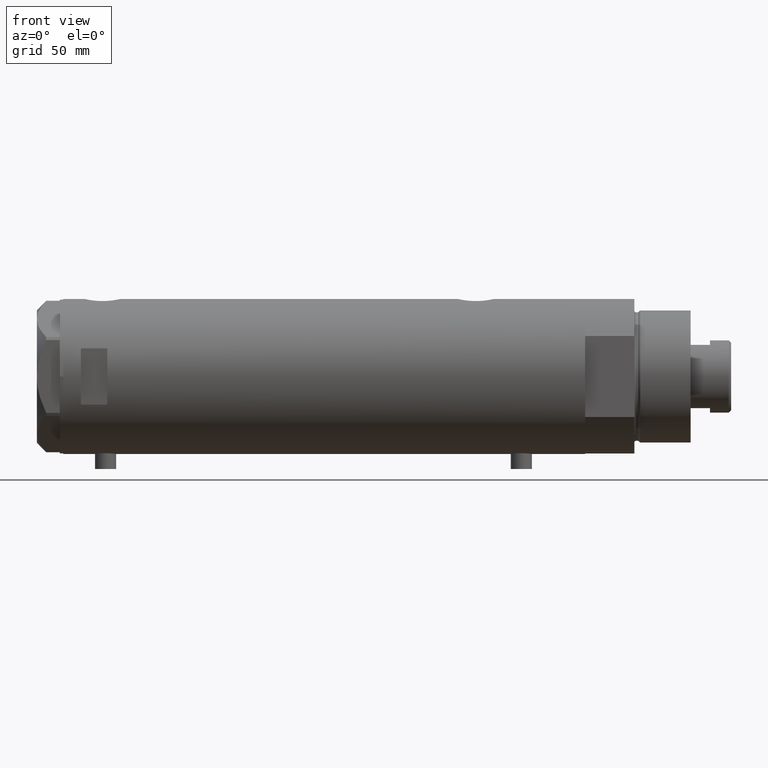
[diagram: clean part render]
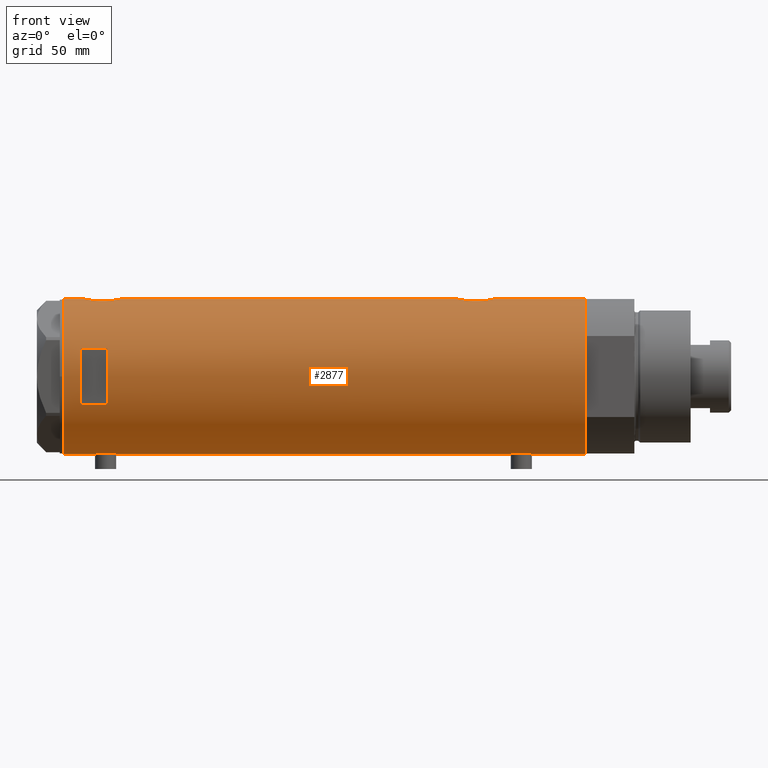
[diagram: same view with one face highlighted and labeled with its STEP entity id]
A machine part, front view. The second image highlights one B-rep face of the part: STEP entity #2877.
In plain terms, the highlighted cylindrical surface (partial cylindrical patch) has radius 44 mm, axis along (-1, -0, 0).
Its self-contained STEP definition (entity closure, byte-faithful):
#7 = CARTESIAN_POINT ( 'NONE',  ( 43.35257225115238811, -7.523216248090025537, -92.69605303592345535 ) ) ;
#8 = CARTESIAN_POINT ( 'NONE',  ( 44.00000000000000000, -1.726036355082439716E-15, 115.9000000000000199 ) ) ;
#32 = CARTESIAN_POINT ( 'NONE',  ( 43.27861175590267351, -7.937636171351966752, -92.19102867990994810 ) ) ;
#33 = CARTESIAN_POINT ( 'NONE',  ( -43.58358352828439308, -6.039443007521657414, -113.5216309838574347 ) ) ;
#45 = CARTESIAN_POINT ( 'NONE',  ( -44.00000000000000000, 5.388445916248353619E-15, -148.1999999999999886 ) ) ;
#92 = CIRCLE ( 'NONE', #2880, 44.00000000000000000 ) ;
#119 = CARTESIAN_POINT ( 'NONE',  ( 43.92776409818819872, -2.602555515054473467, 135.5780334928707589 ) ) ;
#135 = CARTESIAN_POINT ( 'NONE',  ( -43.64064219598290606, -5.614224114468902904, 121.4231451038052683 ) ) ;
#162 = CARTESIAN_POINT ( 'NONE',  ( 43.77763691689009562, -4.427538730370028652, 134.8724271220806656 ) ) ;
#173 = ORIENTED_EDGE ( 'NONE', *, *, #1326, .F. ) ;
#176 = VERTEX_POINT ( 'NONE', #1098 ) ;
#224 = CARTESIAN_POINT ( 'NONE',  ( 42.92612181419237771, -9.662173761604313071, 128.4979978960971323 ) ) ;
#226 = CARTESIAN_POINT ( 'NONE',  ( 42.86369059155249772, -9.935849517229277339, -87.40637410018203468 ) ) ;
#228 = CARTESIAN_POINT ( 'NONE',  ( -43.91347832647110039, -2.763895659397271665, -117.5093864937758497 ) ) ;
#242 = CARTESIAN_POINT ( 'NONE',  ( -43.57664920749031978, -6.089110472216502146, 122.7763691313058985 ) ) ;
#270 = CARTESIAN_POINT ( 'NONE',  ( 43.39001814939470592, -7.304817421876465211, -92.93703460671677874 ) ) ;
#279 = VERTEX_POINT ( 'NONE', #2876 ) ;
#290 = CARTESIAN_POINT ( 'NONE',  ( -43.80623767923740530, -4.134861581628529237, 128.9043636726069337 ) ) ;
#294 = CARTESIAN_POINT ( 'NONE',  ( -43.97059312650996787, -1.620278982928820888, -117.9397869138586827 ) ) ;
#297 = ORIENTED_EDGE ( 'NONE', *, *, #3134, .T. ) ;
#311 = CARTESIAN_POINT ( 'NONE',  ( -43.55388615229802696, -6.249720082677238331, 123.7826748588801564 ) ) ;
#440 = EDGE_CURVE ( 'NONE', #3120, #279, #92, .T. ) ;
#447 = DIRECTION ( 'NONE',  ( 1.000000000000000000, 0.000000000000000000, 0.000000000000000000 ) ) ;
#452 = B_SPLINE_CURVE_WITH_KNOTS ( 'NONE', 3,
 ( #2943, #1145, #1632, #4274, #2500, #3291, #2355, #4469, #3703, #1572, #1966, #1223, #2648, #4043, #2628, #1589, #3000, #874, #4097, #2275, #3728, #572, #3677, #524, #3744, #226, #1925, #3335, #3025, #589, #1669, #32, #7, #270, #4139, #639, #4512, #986, #1378, #2428, #2032, #2783, #4191, #2444, #3830, #1032, #3446 ),
 .UNSPECIFIED., .F., .F.,
 ( 4, 2, 2, 2, 2, 2, 2, 2, 2, 2, 1, 2, 2, 2, 2, 2, 2, 2, 2, 2, 2, 2, 2, 4 ),
 ( 0.03136730421198213881, 0.03332724096696802751, 0.03528717772195391622, 0.03626714609944684670, 0.03724711447693978411, 0.03920705123192565894, 0.04018701960941859636, 0.04116698798691152683, 0.04312692474189736697, 0.04410689311939030438, 0.04508686149688324180, 0.04606682987437617921, 0.04704679825186912356, 0.04900673500685504003, 0.05096667176184094955, 0.05292660851682686601, 0.05390657689431983812, 0.05488654527181281717, 0.05586651364930578928, 0.05684648202679876139, 0.05880641878178470561, 0.05978638715927767078, 0.06076635553677063595, 0.06272629229175656629 ),
 .UNSPECIFIED. ) ;
#455 = LINE ( 'NONE', #2908, #3638 ) ;
#473 = ORIENTED_EDGE ( 'NONE', *, *, #1225, .F. ) ;
#478 = CARTESIAN_POINT ( 'NONE',  ( 43.35323102813806173, -7.519449998269469582, 132.5004228928426642 ) ) ;
#521 = ORIENTED_EDGE ( 'NONE', *, *, #1843, .F. ) ;
#524 = CARTESIAN_POINT ( 'NONE',  ( 42.84860178791321772, -9.999866241079296003, -85.76603617305838156 ) ) ;
#547 = CARTESIAN_POINT ( 'NONE',  ( 42.86761451923556621, -9.918101748202657220, 127.2186752354962636 ) ) ;
#572 = CARTESIAN_POINT ( 'NONE',  ( 42.86761451923556621, -9.918101748202653667, -84.78132476450375066 ) ) ;
#573 = CARTESIAN_POINT ( 'NONE',  ( -43.99432382855034973, -0.8140126287075730716, -118.1104216681691526 ) ) ;
#586 = CARTESIAN_POINT ( 'NONE',  ( 43.77905627191559290, -4.445085099228545111, 116.9185916568396806 ) ) ;
#589 = CARTESIAN_POINT ( 'NONE',  ( 43.13689707656756411, -8.680169016269173810, -91.10836902111202562 ) ) ;
#590 = CARTESIAN_POINT ( 'NONE',  ( -44.00000000000001421, -0.4080709675389184166, -118.1500000000000341 ) ) ;
#610 = CARTESIAN_POINT ( 'NONE',  ( 43.61181667275830875, -5.838254419127776096, 117.7745589058250744 ) ) ;
#614 = CARTESIAN_POINT ( 'NONE',  ( -43.66469451360047316, -5.426465874727615990, 127.3277459186421225 ) ) ;
#637 = CARTESIAN_POINT ( 'NONE',  ( 43.24192112218942441, -8.134529092006102857, 120.0744777013589299 ) ) ;
#638 = VERTEX_POINT ( 'NONE', #3179 ) ;
#639 = CARTESIAN_POINT ( 'NONE',  ( 43.50208939911752992, -6.605519787823897815, -93.61487246254432648 ) ) ;
#644 = ORIENTED_EDGE ( 'NONE', *, *, #656, .F. ) ;
#656 = EDGE_CURVE ( 'NONE', #3465, #3511, #4279, .T. ) ;
#663 = CARTESIAN_POINT ( 'NONE',  ( -43.60904414879379942, -5.852991024272610865, 126.4015631665290300 ) ) ;
#665 = CARTESIAN_POINT ( 'NONE',  ( -43.66524845950890210, -5.422010366683132965, -115.0353804335297809 ) ) ;
#712 = CARTESIAN_POINT ( 'NONE',  ( -43.88932649443422918, -3.137583818903199262, -106.4790096194045788 ) ) ;
#718 = ORIENTED_EDGE ( 'NONE', *, *, #4406, .F. ) ;
#720 = CARTESIAN_POINT ( 'NONE',  ( 44.00000000000000000, 0.000000000000000000, -148.1999999999999886 ) ) ;
#734 = CARTESIAN_POINT ( 'NONE',  ( -43.97729452866927602, -1.427712738744854715, -105.8117709255657815 ) ) ;
#759 = CARTESIAN_POINT ( 'NONE',  ( -43.59959777593760322, -5.922725608094071781, -109.8935068878258079 ) ) ;
#821 = CARTESIAN_POINT ( 'NONE',  ( 43.50370990764397305, -6.606474645717115735, 133.4352093528489149 ) ) ;
#835 = CIRCLE ( 'NONE', #3549, 44.00000000000000000 ) ;
#843 = CARTESIAN_POINT ( 'NONE',  ( -15.96871942267132027, -40.99999999999999289, -148.1999999999999886 ) ) ;
#848 = AXIS2_PLACEMENT_3D ( 'NONE', #2423, #2712, #2006 ) ;
#849 = CARTESIAN_POINT ( 'NONE',  ( 44.00000000000000000, 0.000000000000000000, -148.1999999999999886 ) ) ;
#851 = CARTESIAN_POINT ( 'NONE',  ( 0.000000000000000000, 0.000000000000000000, -148.1999999999999886 ) ) ;
#874 = CARTESIAN_POINT ( 'NONE',  ( 42.99316244204495518, -9.359736474891656499, -82.56396979967827576 ) ) ;
#939 = CARTESIAN_POINT ( 'NONE',  ( 43.07447880731469780, -8.980869115410031966, 130.3470997020410209 ) ) ;
#946 = EDGE_CURVE ( 'NONE', #1254, #2663, #3023, .T. ) ;
#956 = CARTESIAN_POINT ( 'NONE',  ( 42.84850870634925002, -10.00026508230968325, 125.2441608487825988 ) ) ;
#985 = CARTESIAN_POINT ( 'NONE',  ( -43.95404166778755695, -2.020054257598456360, 130.1180894548565448 ) ) ;
#986 = CARTESIAN_POINT ( 'NONE',  ( 43.61181667275830165, -5.838254419127787642, -94.22544109417493985 ) ) ;
#1020 = CARTESIAN_POINT ( 'NONE',  ( 44.00000000000000000, 0.000000000000000000, -148.1999999999999886 ) ) ;
#1032 = CARTESIAN_POINT ( 'NONE',  ( 43.99999999999999289, -0.6628808997490059918, -96.10000000000000853 ) ) ;
#1035 = CARTESIAN_POINT ( 'NONE',  ( -43.55981666146650610, -6.208773019004409477, -112.7243799919361606 ) ) ;
#1055 = CARTESIAN_POINT ( 'NONE',  ( -43.88932649443425049, -3.137583818903188160, 129.6209903805954866 ) ) ;
#1057 = CARTESIAN_POINT ( 'NONE',  ( -44.00000000000001421, -0.4080709675389180835, 117.9500000000000171 ) ) ;
#1059 = CARTESIAN_POINT ( 'NONE',  ( -43.74813644611199948, -4.709999724143497879, -107.7715595605677095 ) ) ;
#1080 = CARTESIAN_POINT ( 'NONE',  ( -44.00000000000000000, 5.388445781982983516E-15, 117.9500000000000028 ) ) ;
#1085 = CARTESIAN_POINT ( 'NONE',  ( -43.59994860325051036, -5.920144153815573240, -113.9140635756975968 ) ) ;
#1098 = CARTESIAN_POINT ( 'NONE',  ( -44.00000000000000000, 3.205170455528113082E-15, 130.4500000000000171 ) ) ;
#1114 = CARTESIAN_POINT ( 'NONE',  ( 44.00000000000000000, -3.917104602093038540E-21, -76.10000000000000853 ) ) ;
#1125 = AXIS2_PLACEMENT_3D ( 'NONE', #2341, #4103, #1330 ) ;
#1126 = CARTESIAN_POINT ( 'NONE',  ( -44.00000000000000000, 4.742435893011557518E-16, -105.6499999999999915 ) ) ;
#1145 = CARTESIAN_POINT ( 'NONE',  ( 44.00000000000000000, -0.6537011444665536963, -76.10000000000002274 ) ) ;
#1154 = CARTESIAN_POINT ( 'NONE',  ( -43.97059312650997498, -1.620278982928819778, 118.1602130861413116 ) ) ;
#1193 = CARTESIAN_POINT ( 'NONE',  ( 43.13833976206232990, -8.672905216733560962, 130.9203292102081377 ) ) ;
#1223 = CARTESIAN_POINT ( 'NONE',  ( 43.39114022679083860, -7.298186114522535739, -79.25582720507938461 ) ) ;
#1225 = EDGE_CURVE ( 'NONE', #1658, #1254, #3001, .T. ) ;
#1228 = DIRECTION ( 'NONE',  ( 0.000000000000000000, 0.000000000000000000, 1.000000000000000000 ) ) ;
#1250 = CARTESIAN_POINT ( 'NONE',  ( -44.00000000000000000, 5.388445916248353619E-15, 148.1999999999999886 ) ) ;
#1254 = VERTEX_POINT ( 'NONE', #1262 ) ;
#1258 = CARTESIAN_POINT ( 'NONE',  ( 42.96573602780769363, -9.487415353952519226, 122.6726545541638274 ) ) ;
#1262 = CARTESIAN_POINT ( 'NONE',  ( 15.96871942267132027, -40.99999999999999289, 138.1999999999999886 ) ) ;
#1279 = AXIS2_PLACEMENT_3D ( 'NONE', #851, #1486, #1512 ) ;
#1285 = CIRCLE ( 'NONE', #848, 44.00000000000000000 ) ;
#1304 = CARTESIAN_POINT ( 'NONE',  ( 43.35257225115238100, -7.523216248090027314, 119.3039469640765731 ) ) ;
#1321 = CARTESIAN_POINT ( 'NONE',  ( -43.58327167020067350, -6.041691433183231652, 125.8132755078336658 ) ) ;
#1326 = EDGE_CURVE ( 'NONE', #1569, #3465, #2249, .T. ) ;
#1330 = DIRECTION ( 'NONE',  ( 1.000000000000000000, 0.000000000000000000, 0.000000000000000000 ) ) ;
#1341 = VECTOR ( 'NONE', #2217, 1000.000000000000000 ) ;
#1343 = CARTESIAN_POINT ( 'NONE',  ( 43.57553740812844723, -6.102230194686611320, 117.9710034401132788 ) ) ;
#1348 = CARTESIAN_POINT ( 'NONE',  ( -43.99999999999999289, -0.4134142287044815789, 130.4500000000000455 ) ) ;
#1352 = CARTESIAN_POINT ( 'NONE',  ( -43.71916086763248899, -4.968610719017467758, -115.7133599885462871 ) ) ;
#1377 = CARTESIAN_POINT ( 'NONE',  ( -43.55964145621772587, -6.209995197331128480, 125.0152361338357565 ) ) ;
#1378 = CARTESIAN_POINT ( 'NONE',  ( 43.71626298452615345, -5.019105827807321951, -94.77413437979603827 ) ) ;
#1382 = VERTEX_POINT ( 'NONE', #8 ) ;
#1390 = CARTESIAN_POINT ( 'NONE',  ( 0.000000000000000000, 0.000000000000000000, 148.1999999999999886 ) ) ;
#1419 = CARTESIAN_POINT ( 'NONE',  ( -43.71863308610073773, -4.973248429199020215, -108.0926220987882687 ) ) ;
#1441 = CARTESIAN_POINT ( 'NONE',  ( -43.59994860325049615, -5.920144153815568799, 122.1859364243023549 ) ) ;
#1462 = CARTESIAN_POINT ( 'NONE',  ( -43.95404166778755695, -2.020054257598466574, -105.9819105451434638 ) ) ;
#1463 = VERTEX_POINT ( 'NONE', #849 ) ;
#1486 = DIRECTION ( 'NONE',  ( 0.000000000000000000, 0.000000000000000000, 1.000000000000000000 ) ) ;
#1488 = LINE ( 'NONE', #2649, #2162 ) ;
#1509 = CARTESIAN_POINT ( 'NONE',  ( -43.80686114384899810, -4.128296917151109469, 119.4898414487168878 ) ) ;
#1510 = CARTESIAN_POINT ( 'NONE',  ( 43.88549648731375896, -3.229309612650777872, 135.3866430248638437 ) ) ;
#1512 = DIRECTION ( 'NONE',  ( 1.000000000000000000, 0.000000000000000000, 0.000000000000000000 ) ) ;
#1569 = VERTEX_POINT ( 'NONE', #4374 ) ;
#1572 = CARTESIAN_POINT ( 'NONE',  ( 43.57790701154753066, -6.104591320335878812, -78.15258699105068274 ) ) ;
#1576 = EDGE_CURVE ( 'NONE', #638, #1382, #1859, .T. ) ;
#1587 = CARTESIAN_POINT ( 'NONE',  ( -43.58358352828439308, -6.039443007521653861, 122.5783690161426023 ) ) ;
#1589 = CARTESIAN_POINT ( 'NONE',  ( 43.13833976206232990, -8.672905216733550304, -81.07967078979186226 ) ) ;
#1632 = CARTESIAN_POINT ( 'NONE',  ( 43.98543813568861083, -1.304985013906736491, -76.16346933726120483 ) ) ;
#1645 = CARTESIAN_POINT ( 'NONE',  ( -43.94477385411916259, -2.211843467998029222, 130.0490722992286408 ) ) ;
#1658 = VERTEX_POINT ( 'NONE', #4208 ) ;
#1669 = CARTESIAN_POINT ( 'NONE',  ( 43.24192112218942441, -8.134529092006102857, -91.92552229864112689 ) ) ;
#1673 = LINE ( 'NONE', #3407, #4520 ) ;
#1676 = CARTESIAN_POINT ( 'NONE',  ( 44.00000000000000000, -2.552687571866728611E-15, -96.10000000000000853 ) ) ;
#1688 = CARTESIAN_POINT ( 'NONE',  ( 43.39001814939471302, -7.304817421876452777, 119.0629653932832497 ) ) ;
#1694 = CARTESIAN_POINT ( 'NONE',  ( -43.97029046111976669, -1.628482392291942471, 130.2375861979205354 ) ) ;
#1697 = CARTESIAN_POINT ( 'NONE',  ( -43.87623998657198143, -3.302247739865014964, -117.2103434351974443 ) ) ;
#1720 = CARTESIAN_POINT ( 'NONE',  ( -43.91398925748692506, -2.775454910411446541, 129.8147077568106624 ) ) ;
#1747 = CARTESIAN_POINT ( 'NONE',  ( -43.91398925748691084, -2.775454910411443876, -106.2852922431893319 ) ) ;
#1775 = LINE ( 'NONE', #720, #2388 ) ;
#1797 = CARTESIAN_POINT ( 'NONE',  ( -43.83572624786196315, -3.813948911733267888, 119.2316356977933651 ) ) ;
#1805 = VECTOR ( 'NONE', #3820, 1000.000000000000000 ) ;
#1843 = EDGE_CURVE ( 'NONE', #2663, #3576, #3986, .T. ) ;
#1859 = B_SPLINE_CURVE_WITH_KNOTS ( 'NONE', 3,
 ( #3329, #3597, #2909, #119, #1510, #3310, #162, #2978, #2582, #3972, #821, #3622, #478, #2929, #4353, #1193, #939, #2299, #2395, #224, #3442, #547, #3785, #3763, #956, #3699, #4419, #1258, #4467, #2330, #637, #2672, #1304, #1688, #4134, #2697, #1343, #610, #3086, #586, #2029, #4169, #4505, #3049, #1981, #2349, #2996 ),
 .UNSPECIFIED., .F., .F.,
 ( 4, 2, 2, 2, 2, 2, 2, 2, 2, 2, 1, 2, 2, 2, 2, 2, 2, 2, 2, 2, 2, 2, 2, 4 ),
 ( 0.03136730421198213187, 0.03332724096696802751, 0.03528717772195392316, 0.03626714609944686751, 0.03724711447693981187, 0.03920705123192570751, 0.04018701960941865881, 0.04116698798691159622, 0.04312692474189755432, 0.04410689311939049867, 0.04508686149688344302, 0.04606682987437638044, 0.04704679825186932479, 0.04900673500685520656, 0.05096667176184109527, 0.05292660851682697010, 0.05390657689431993527, 0.05488654527181288656, 0.05586651364930585173, 0.05684648202679880302, 0.05880641878178471949, 0.05978638715927768466, 0.06076635553677064983, 0.06272629229175658017 ),
 .UNSPECIFIED. ) ;
#1881 = FACE_OUTER_BOUND ( 'NONE', #3366, .T. ) ;
#1918 = EDGE_CURVE ( 'NONE', #3226, #1463, #835, .T. ) ;
#1921 = VECTOR ( 'NONE', #2147, 1000.000000000000000 ) ;
#1925 = CARTESIAN_POINT ( 'NONE',  ( 42.92195198079053142, -9.681069926205539744, -88.68932500906515770 ) ) ;
#1966 = CARTESIAN_POINT ( 'NONE',  ( 43.50370990764398016, -6.606474645717129057, -78.56479064715114191 ) ) ;
#1981 = CARTESIAN_POINT ( 'NONE',  ( 43.98503203903423753, -1.316644100880400625, 115.9652704470436788 ) ) ;
#1986 = CARTESIAN_POINT ( 'NONE',  ( -43.95442538259509746, -2.011679190499023662, -117.8209354650977616 ) ) ;
#2006 = DIRECTION ( 'NONE',  ( -1.000000000000000000, 0.000000000000000000, 0.000000000000000000 ) ) ;
#2027 = EDGE_LOOP ( 'NONE', ( #4359, #521, #2654, #473 ) ) ;
#2029 = CARTESIAN_POINT ( 'NONE',  ( 43.85817087158036287, -3.542878095418166229, 116.5429633888447682 ) ) ;
#2032 = CARTESIAN_POINT ( 'NONE',  ( 43.85817087158034866, -3.542878095418174667, -95.45703661115521754 ) ) ;
#2078 = CARTESIAN_POINT ( 'NONE',  ( -43.57636709704393496, -6.091127289750671636, 125.6149932566098215 ) ) ;
#2108 = CARTESIAN_POINT ( 'NONE',  ( -43.99417593155912698, -0.8219945290704717689, -105.6906189758703931 ) ) ;
#2117 = DIRECTION ( 'NONE',  ( 0.000000000000000000, 0.000000000000000000, 1.000000000000000000 ) ) ;
#2147 = DIRECTION ( 'NONE',  ( 0.000000000000000000, 0.000000000000000000, 1.000000000000000000 ) ) ;
#2161 = CARTESIAN_POINT ( 'NONE',  ( -43.83513771791772484, -3.820747781112549202, -106.9367898170362565 ) ) ;
#2162 = VECTOR ( 'NONE', #3312, 1000.000000000000000 ) ;
#2169 = DIRECTION ( 'NONE',  ( 0.000000000000000000, 0.000000000000000000, 1.000000000000000000 ) ) ;
#2182 = ORIENTED_EDGE ( 'NONE', *, *, #1576, .F. ) ;
#2217 = DIRECTION ( 'NONE',  ( -0.000000000000000000, -0.000000000000000000, -1.000000000000000000 ) ) ;
#2249 = B_SPLINE_CURVE_WITH_KNOTS ( 'NONE', 3,
 ( #2405, #590, #573, #3791, #294, #1986, #2376, #228, #2718, #1697, #4515, #3403, #4444, #1352, #665, #3027, #2700, #1085, #33, #3518, #1035, #2494, #2473, #3905, #3883, #3118, #759, #4214, #3861, #2515, #1419, #1059, #3832, #2161, #712, #1747, #2447, #1462, #2831, #734, #2108, #2806, #1126 ),
 .UNSPECIFIED., .F., .F.,
 ( 4, 2, 2, 1, 2, 2, 2, 2, 2, 2, 2, 2, 2, 2, 2, 2, 2, 2, 2, 2, 2, 4 ),
 ( 0.01956509074799517994, 0.02078761141254040559, 0.02139887174481301668, 0.02201013207708563124, 0.02262139240935824580, 0.02323265274163085689, 0.02445517340617610336, 0.02567769407072134982, 0.02690021473526659629, 0.02751147506753922126, 0.02812273539981184622, 0.02934525606435713085, 0.03056777672890241548, 0.03117903706117506127, 0.03179029739344770011, 0.03301281805799302638, 0.03423533872253835264, 0.03545785938708367196, 0.03668038005162899129, 0.03729164038390166136, 0.03790290071617432449, 0.03912542138071965075 ),
 .UNSPECIFIED. ) ;
#2275 = CARTESIAN_POINT ( 'NONE',  ( 42.92612181419234219, -9.662173761604309519, -83.50200210390283928 ) ) ;
#2299 = CARTESIAN_POINT ( 'NONE',  ( 42.99316244204496229, -9.359736474891649394, 129.4360302003217669 ) ) ;
#2330 = CARTESIAN_POINT ( 'NONE',  ( 43.13689707656755701, -8.680169016269175586, 120.8916309788880312 ) ) ;
#2341 = CARTESIAN_POINT ( 'NONE',  ( 0.000000000000000000, 0.000000000000000000, 138.1999999999999886 ) ) ;
#2346 = ORIENTED_EDGE ( 'NONE', *, *, #1918, .T. ) ;
#2349 = CARTESIAN_POINT ( 'NONE',  ( 43.99999999999998579, -0.6628808997490075461, 115.8999999999999915 ) ) ;
#2355 = CARTESIAN_POINT ( 'NONE',  ( 43.77763691689010273, -4.427538730370040199, -77.12757287791932015 ) ) ;
#2356 = CARTESIAN_POINT ( 'NONE',  ( 15.96871942267132027, -40.99999999999999289, -148.1999999999999886 ) ) ;
#2368 = DIRECTION ( 'NONE',  ( 0.000000000000000000, 0.000000000000000000, 1.000000000000000000 ) ) ;
#2376 = CARTESIAN_POINT ( 'NONE',  ( -43.93596008603760339, -2.395372424984027582, -117.6834918053061330 ) ) ;
#2388 = VECTOR ( 'NONE', #2117, 1000.000000000000000 ) ;
#2395 = CARTESIAN_POINT ( 'NONE',  ( 42.96858625215908489, -9.471543237354838496, 129.1244477931078336 ) ) ;
#2405 = CARTESIAN_POINT ( 'NONE',  ( -44.00000000000000000, 5.388445781982983516E-15, -118.1500000000000057 ) ) ;
#2422 = EDGE_CURVE ( 'NONE', #3132, #1382, #1775, .T. ) ;
#2423 = CARTESIAN_POINT ( 'NONE',  ( 0.000000000000000000, 0.000000000000000000, 123.1999999999999744 ) ) ;
#2425 = ORIENTED_EDGE ( 'NONE', *, *, #440, .F. ) ;
#2428 = CARTESIAN_POINT ( 'NONE',  ( 43.77905627191558580, -4.445085099228550440, -95.08140834316036205 ) ) ;
#2444 = CARTESIAN_POINT ( 'NONE',  ( 43.94187300917954531, -2.283844398366611905, -95.84126046817046074 ) ) ;
#2447 = CARTESIAN_POINT ( 'NONE',  ( -43.94477385411916970, -2.211843467998029666, -106.0509277007713678 ) ) ;
#2454 = LINE ( 'NONE', #1020, #1805 ) ;
#2470 = CARTESIAN_POINT ( 'NONE',  ( -43.99432382855035684, -0.8140126287075735156, 117.9895783318308560 ) ) ;
#2473 = CARTESIAN_POINT ( 'NONE',  ( -43.55380622335315621, -6.250277076879243943, -111.4911016660981176 ) ) ;
#2478 = EDGE_CURVE ( 'NONE', #3226, #1569, #1488, .T. ) ;
#2494 = CARTESIAN_POINT ( 'NONE',  ( -43.55388615229803406, -6.249720082677240107, -112.3173251411198379 ) ) ;
#2500 = CARTESIAN_POINT ( 'NONE',  ( 43.88549648731377317, -3.229309612650779648, -76.61335697513617049 ) ) ;
#2515 = CARTESIAN_POINT ( 'NONE',  ( -43.66469451360045895, -5.426465874727613325, -108.7722540813579002 ) ) ;
#2543 = CARTESIAN_POINT ( 'NONE',  ( -43.91347832647110039, -2.763895659397270776, 118.5906135062241589 ) ) ;
#2582 = CARTESIAN_POINT ( 'NONE',  ( 43.68175117880464597, -5.289576318274422206, 134.3927754329155846 ) ) ;
#2628 = CARTESIAN_POINT ( 'NONE',  ( 43.24269204559829660, -8.130405600641545050, -80.26885497193008234 ) ) ;
#2648 = CARTESIAN_POINT ( 'NONE',  ( 43.35323102813806173, -7.519449998269473134, -79.49957710715735004 ) ) ;
#2649 = CARTESIAN_POINT ( 'NONE',  ( -44.00000000000000000, 5.388445916248353619E-15, -148.1999999999999886 ) ) ;
#2654 = ORIENTED_EDGE ( 'NONE', *, *, #946, .F. ) ;
#2663 = VERTEX_POINT ( 'NONE', #4100 ) ;
#2672 = CARTESIAN_POINT ( 'NONE',  ( 43.27861175590269482, -7.937636171351966752, 119.8089713200900661 ) ) ;
#2679 = ORIENTED_EDGE ( 'NONE', *, *, #2422, .T. ) ;
#2694 = EDGE_CURVE ( 'NONE', #1463, #4189, #1673, .T. ) ;
#2697 = CARTESIAN_POINT ( 'NONE',  ( 43.50208939911753703, -6.605519787823886269, 118.3851275374557162 ) ) ;
#2700 = CARTESIAN_POINT ( 'NONE',  ( -43.60943079847655213, -5.850114217193378430, -114.1092187592660849 ) ) ;
#2711 = CARTESIAN_POINT ( 'NONE',  ( -43.55981666146649900, -6.208773019004407701, 123.3756200080638195 ) ) ;
#2712 = DIRECTION ( 'NONE',  ( 0.000000000000000000, 0.000000000000000000, 1.000000000000000000 ) ) ;
#2717 = CARTESIAN_POINT ( 'NONE',  ( -43.99417593155911987, -0.8219945290704597785, 130.4093810241296012 ) ) ;
#2718 = CARTESIAN_POINT ( 'NONE',  ( -43.88927795770375440, -3.124736516396337649, -117.3166740492380598 ) ) ;
#2735 = CARTESIAN_POINT ( 'NONE',  ( -43.83513771791772484, -3.820747781112540764, 129.1632101829637236 ) ) ;
#2783 = CARTESIAN_POINT ( 'NONE',  ( 43.88203303552248968, -3.235230624304769709, -95.56792613063983310 ) ) ;
#2803 = CARTESIAN_POINT ( 'NONE',  ( -43.64013512596971367, -5.618144550806302817, 126.9688425437316681 ) ) ;
#2806 = CARTESIAN_POINT ( 'NONE',  ( -44.00000000000000711, -0.4134142287044808017, -105.6500000000000057 ) ) ;
#2831 = CARTESIAN_POINT ( 'NONE',  ( -43.97029046111977379, -1.628482392291957126, -105.8624138020794447 ) ) ;
#2867 = CARTESIAN_POINT ( 'NONE',  ( -43.97755541524607992, -1.419649999726221745, 118.1098885607636646 ) ) ;
#2876 = CARTESIAN_POINT ( 'NONE',  ( 44.00000000000000000, 0.000000000000000000, 148.1999999999999886 ) ) ;
#2877 = ADVANCED_FACE ( 'NONE', ( #1881, #3290 ), #3261, .T. ) ;
#2880 = AXIS2_PLACEMENT_3D ( 'NONE', #1390, #2368, #4127 ) ;
#2908 = CARTESIAN_POINT ( 'NONE',  ( -44.00000000000000000, 5.388445916248353619E-15, -148.1999999999999886 ) ) ;
#2909 = CARTESIAN_POINT ( 'NONE',  ( 43.98543813568862504, -1.304985013906734048, 135.8365306627388236 ) ) ;
#2929 = CARTESIAN_POINT ( 'NONE',  ( 43.27890888111421930, -7.936045294464972422, 131.9931843665719668 ) ) ;
#2943 = CARTESIAN_POINT ( 'NONE',  ( 44.00000000000000000, -3.917104602093038540E-21, -76.10000000000000853 ) ) ;
#2949 = B_SPLINE_CURVE_WITH_KNOTS ( 'NONE', 3,
 ( #3140, #1057, #2470, #2867, #1154, #4351, #3970, #2543, #3990, #3595, #1797, #1509, #3621, #3933, #3286, #135, #4283, #1441, #1587, #242, #2711, #311, #3610, #1377, #2078, #1321, #3765, #663, #2803, #614, #3068, #3827, #290, #2735, #1055, #1720, #1645, #985, #1694, #4511, #2717, #1348, #3471 ),
 .UNSPECIFIED., .F., .F.,
 ( 4, 2, 2, 1, 2, 2, 2, 2, 2, 2, 2, 2, 2, 2, 2, 2, 2, 2, 2, 2, 2, 4 ),
 ( 0.01956509074799516260, 0.02078761141254046457, 0.02139887174481311383, 0.02201013207708576655, 0.02262139240935841580, 0.02323265274163106506, 0.02445517340617638785, 0.02567769407072171411, 0.02690021473526703691, 0.02751147506753969657, 0.02812273539981235970, 0.02934525606435772760, 0.03056777672890308856, 0.03117903706117573087, 0.03179029739344837319, 0.03301281805799358149, 0.03423533872253878979, 0.03545785938708399809, 0.03668038005162919946, 0.03729164038390180014, 0.03790290071617440082, 0.03912542138071962300 ),
 .UNSPECIFIED. ) ;
#2967 = CARTESIAN_POINT ( 'NONE',  ( -15.96871942267132027, -40.99999999999999289, 123.1999999999999744 ) ) ;
#2978 = CARTESIAN_POINT ( 'NONE',  ( 43.71528002050701645, -5.005885132985630648, 134.5630630671448955 ) ) ;
#2996 = CARTESIAN_POINT ( 'NONE',  ( 44.00000000000000000, -1.726036355082439716E-15, 115.9000000000000199 ) ) ;
#3000 = CARTESIAN_POINT ( 'NONE',  ( 43.07447880731469780, -8.980869115410037296, -81.65290029795900750 ) ) ;
#3001 = LINE ( 'NONE', #2356, #3762 ) ;
#3023 = CIRCLE ( 'NONE', #1125, 44.00000000000000000 ) ;
#3025 = CARTESIAN_POINT ( 'NONE',  ( 43.07321175413309788, -8.986876637256990819, -90.53428201988754154 ) ) ;
#3027 = CARTESIAN_POINT ( 'NONE',  ( -43.64064219598290606, -5.614224114468902904, -114.6768548961947261 ) ) ;
#3049 = CARTESIAN_POINT ( 'NONE',  ( 43.94187300917954531, -2.283844398366604800, 116.1587395318295250 ) ) ;
#3068 = CARTESIAN_POINT ( 'NONE',  ( -43.71863308610075194, -4.973248429199021992, 128.0073779012117257 ) ) ;
#3085 = CARTESIAN_POINT ( 'NONE',  ( -44.00000000000000000, 4.742435893011557518E-16, -105.6499999999999915 ) ) ;
#3086 = CARTESIAN_POINT ( 'NONE',  ( 43.71626298452614634, -5.019105827807306852, 117.2258656202040470 ) ) ;
#3118 = CARTESIAN_POINT ( 'NONE',  ( -43.58327167020068060, -6.041691433183235205, -110.2867244921663428 ) ) ;
#3120 = VERTEX_POINT ( 'NONE', #1250 ) ;
#3132 = VERTEX_POINT ( 'NONE', #1114 ) ;
#3134 = EDGE_CURVE ( 'NONE', #638, #279, #2454, .T. ) ;
#3140 = CARTESIAN_POINT ( 'NONE',  ( -44.00000000000000000, 5.388445781982983516E-15, 117.9500000000000028 ) ) ;
#3179 = CARTESIAN_POINT ( 'NONE',  ( 44.00000000000000000, -3.917205576288906830E-21, 135.9000000000000341 ) ) ;
#3215 = ORIENTED_EDGE ( 'NONE', *, *, #4466, .F. ) ;
#3226 = VERTEX_POINT ( 'NONE', #3656 ) ;
#3261 = CYLINDRICAL_SURFACE ( 'NONE', #1279, 44.00000000000000000 ) ;
#3286 = CARTESIAN_POINT ( 'NONE',  ( -43.66524845950888789, -5.422010366683132965, 121.0646195664701850 ) ) ;
#3290 = FACE_BOUND ( 'NONE', #2027, .T. ) ;
#3291 = CARTESIAN_POINT ( 'NONE',  ( 43.80655905412562134, -4.132395729537634566, -76.98794673806234812 ) ) ;
#3310 = CARTESIAN_POINT ( 'NONE',  ( 43.80655905412561424, -4.132395729537634566, 135.0120532619376377 ) ) ;
#3312 = DIRECTION ( 'NONE',  ( 0.000000000000000000, 0.000000000000000000, 1.000000000000000000 ) ) ;
#3329 = CARTESIAN_POINT ( 'NONE',  ( 44.00000000000000000, -3.917205576288906830E-21, 135.9000000000000341 ) ) ;
#3335 = CARTESIAN_POINT ( 'NONE',  ( 42.96573602780769363, -9.487415353952519226, -89.32734544583622949 ) ) ;
#3366 = EDGE_LOOP ( 'NONE', ( #3855, #2346, #4011, #3215, #2679, #2182, #297, #2425, #718, #4175, #644, #173 ) ) ;
#3403 = CARTESIAN_POINT ( 'NONE',  ( -43.80686114384900520, -4.128296917151112133, -116.6101585512831207 ) ) ;
#3407 = CARTESIAN_POINT ( 'NONE',  ( 44.00000000000000000, 0.000000000000000000, -148.1999999999999886 ) ) ;
#3442 = CARTESIAN_POINT ( 'NONE',  ( 42.89003040145177437, -9.821289533110936887, 127.8649162832999622 ) ) ;
#3446 = CARTESIAN_POINT ( 'NONE',  ( 44.00000000000000000, -2.552687571866728611E-15, -96.10000000000000853 ) ) ;
#3450 = DIRECTION ( 'NONE',  ( 0.000000000000000000, 0.000000000000000000, 1.000000000000000000 ) ) ;
#3465 = VERTEX_POINT ( 'NONE', #3085 ) ;
#3469 = EDGE_CURVE ( 'NONE', #3576, #1658, #1285, .T. ) ;
#3471 = CARTESIAN_POINT ( 'NONE',  ( -44.00000000000000000, 3.205170455528113082E-15, 130.4500000000000171 ) ) ;
#3511 = VERTEX_POINT ( 'NONE', #1080 ) ;
#3518 = CARTESIAN_POINT ( 'NONE',  ( -43.57664920749031978, -6.089110472216501257, -113.3236308686941385 ) ) ;
#3525 = CARTESIAN_POINT ( 'NONE',  ( 0.000000000000000000, 0.000000000000000000, -148.1999999999999886 ) ) ;
#3549 = AXIS2_PLACEMENT_3D ( 'NONE', #3525, #2169, #447 ) ;
#3576 = VERTEX_POINT ( 'NONE', #2967 ) ;
#3595 = CARTESIAN_POINT ( 'NONE',  ( -43.87623998657198143, -3.302247739865014964, 118.8896565648025785 ) ) ;
#3597 = CARTESIAN_POINT ( 'NONE',  ( 43.99999999999999289, -0.6537011444665495885, 135.9000000000000341 ) ) ;
#3610 = CARTESIAN_POINT ( 'NONE',  ( -43.55380622335314200, -6.250277076879244831, 124.6088983339019194 ) ) ;
#3621 = CARTESIAN_POINT ( 'NONE',  ( -43.74870614644076738, -4.704745394280562820, 120.0655351265997410 ) ) ;
#3622 = CARTESIAN_POINT ( 'NONE',  ( 43.39114022679084570, -7.298186114522522416, 132.7441727949206438 ) ) ;
#3638 = VECTOR ( 'NONE', #4333, 1000.000000000000000 ) ;
#3656 = CARTESIAN_POINT ( 'NONE',  ( -44.00000000000000000, 5.388445916248353619E-15, -148.1999999999999886 ) ) ;
#3677 = CARTESIAN_POINT ( 'NONE',  ( 42.85249883256043546, -9.983208936152868418, -85.43427783458179192 ) ) ;
#3699 = CARTESIAN_POINT ( 'NONE',  ( 42.86369059155248351, -9.935849517229273786, 124.5936258998180222 ) ) ;
#3703 = CARTESIAN_POINT ( 'NONE',  ( 43.68175117880463887, -5.289576318274435529, -77.60722456708444383 ) ) ;
#3728 = CARTESIAN_POINT ( 'NONE',  ( 42.89003040145178147, -9.821289533110931558, -84.13508371670005204 ) ) ;
#3744 = CARTESIAN_POINT ( 'NONE',  ( 42.84850870634926423, -10.00026508230968503, -86.75583915121745804 ) ) ;
#3762 = VECTOR ( 'NONE', #3450, 1000.000000000000000 ) ;
#3763 = CARTESIAN_POINT ( 'NONE',  ( 42.84860178791323193, -9.999866241079301332, 126.2339638269416895 ) ) ;
#3765 = CARTESIAN_POINT ( 'NONE',  ( -43.59959777593760322, -5.922725608094065564, 126.2064931121741864 ) ) ;
#3785 = CARTESIAN_POINT ( 'NONE',  ( 42.85249883256044257, -9.983208936152875523, 126.5657221654182791 ) ) ;
#3791 = CARTESIAN_POINT ( 'NONE',  ( -43.97755541524606571, -1.419649999726221967, -117.9901114392363439 ) ) ;
#3820 = DIRECTION ( 'NONE',  ( 0.000000000000000000, 0.000000000000000000, 1.000000000000000000 ) ) ;
#3827 = CARTESIAN_POINT ( 'NONE',  ( -43.74813644611202079, -4.709999724143500544, 128.3284404394322564 ) ) ;
#3830 = CARTESIAN_POINT ( 'NONE',  ( 43.98503203903424463, -1.316644100880403956, -96.03472955295633540 ) ) ;
#3832 = CARTESIAN_POINT ( 'NONE',  ( -43.80623767923739109, -4.134861581628527460, -107.1956363273930464 ) ) ;
#3855 = ORIENTED_EDGE ( 'NONE', *, *, #2478, .F. ) ;
#3861 = CARTESIAN_POINT ( 'NONE',  ( -43.64013512596971367, -5.618144550806293047, -109.1311574562683404 ) ) ;
#3883 = CARTESIAN_POINT ( 'NONE',  ( -43.57636709704394917, -6.091127289750676077, -110.4850067433901586 ) ) ;
#3905 = CARTESIAN_POINT ( 'NONE',  ( -43.55964145621772587, -6.209995197331129368, -111.0847638661642947 ) ) ;
#3933 = CARTESIAN_POINT ( 'NONE',  ( -43.71916086763250320, -4.968610719017469535, 120.3866400114537782 ) ) ;
#3970 = CARTESIAN_POINT ( 'NONE',  ( -43.93596008603758918, -2.395372424984029802, 118.4165081946938756 ) ) ;
#3972 = CARTESIAN_POINT ( 'NONE',  ( 43.57790701154752355, -6.104591320335862825, 133.8474130089493315 ) ) ;
#3986 = LINE ( 'NONE', #843, #1341 ) ;
#3990 = CARTESIAN_POINT ( 'NONE',  ( -43.88927795770376150, -3.124736516396337205, 118.7833259507619630 ) ) ;
#4011 = ORIENTED_EDGE ( 'NONE', *, *, #2694, .T. ) ;
#4043 = CARTESIAN_POINT ( 'NONE',  ( 43.27890888111423351, -7.936045294464974198, -80.00681563342807578 ) ) ;
#4097 = CARTESIAN_POINT ( 'NONE',  ( 42.96858625215907779, -9.471543237354833167, -82.87555220689219482 ) ) ;
#4100 = CARTESIAN_POINT ( 'NONE',  ( -15.96871942267132027, -40.99999999999999289, 138.1999999999999886 ) ) ;
#4103 = DIRECTION ( 'NONE',  ( -0.000000000000000000, 0.000000000000000000, -1.000000000000000000 ) ) ;
#4127 = DIRECTION ( 'NONE',  ( 1.000000000000000000, 0.000000000000000000, 0.000000000000000000 ) ) ;
#4134 = CARTESIAN_POINT ( 'NONE',  ( 43.46477581456304051, -6.845969322274839008, 118.6035553987669147 ) ) ;
#4139 = CARTESIAN_POINT ( 'NONE',  ( 43.46477581456301920, -6.845969322274847890, -93.39644460123308534 ) ) ;
#4169 = CARTESIAN_POINT ( 'NONE',  ( 43.88203303552249679, -3.235230624304762603, 116.4320738693601811 ) ) ;
#4175 = ORIENTED_EDGE ( 'NONE', *, *, #4483, .F. ) ;
#4189 = VERTEX_POINT ( 'NONE', #1676 ) ;
#4191 = CARTESIAN_POINT ( 'NONE',  ( 43.92391465552168484, -2.605621203777308104, -95.76018015101779213 ) ) ;
#4208 = CARTESIAN_POINT ( 'NONE',  ( 15.96871942267132027, -40.99999999999999289, 123.1999999999999744 ) ) ;
#4214 = CARTESIAN_POINT ( 'NONE',  ( -43.60904414879379942, -5.852991024272603759, -109.6984368334709075 ) ) ;
#4274 = CARTESIAN_POINT ( 'NONE',  ( 43.92776409818817740, -2.602555515054471247, -76.42196650712921269 ) ) ;
#4279 = LINE ( 'NONE', #45, #1921 ) ;
#4283 = CARTESIAN_POINT ( 'NONE',  ( -43.60943079847653792, -5.850114217193379318, 121.9907812407339378 ) ) ;
#4333 = DIRECTION ( 'NONE',  ( 0.000000000000000000, 0.000000000000000000, 1.000000000000000000 ) ) ;
#4351 = CARTESIAN_POINT ( 'NONE',  ( -43.95442538259508325, -2.011679190499021885, 118.2790645349021617 ) ) ;
#4353 = CARTESIAN_POINT ( 'NONE',  ( 43.24269204559828239, -8.130405600641548602, 131.7311450280699034 ) ) ;
#4359 = ORIENTED_EDGE ( 'NONE', *, *, #3469, .F. ) ;
#4374 = CARTESIAN_POINT ( 'NONE',  ( -44.00000000000000000, 5.388445781982983516E-15, -118.1500000000000057 ) ) ;
#4406 = EDGE_CURVE ( 'NONE', #176, #3120, #455, .T. ) ;
#4419 = CARTESIAN_POINT ( 'NONE',  ( 42.92195198079053142, -9.681069926205541520, 123.3106749909349134 ) ) ;
#4444 = CARTESIAN_POINT ( 'NONE',  ( -43.74870614644074607, -4.704745394280565485, -116.0344648734002249 ) ) ;
#4466 = EDGE_CURVE ( 'NONE', #3132, #4189, #452, .T. ) ;
#4467 = CARTESIAN_POINT ( 'NONE',  ( 43.07321175413309078, -8.986876637256990819, 121.4657179801124727 ) ) ;
#4469 = CARTESIAN_POINT ( 'NONE',  ( 43.71528002050701645, -5.005885132985640418, -77.43693693285514712 ) ) ;
#4483 = EDGE_CURVE ( 'NONE', #3511, #176, #2949, .T. ) ;
#4505 = CARTESIAN_POINT ( 'NONE',  ( 43.92391465552169194, -2.605621203777300554, 116.2398198489821937 ) ) ;
#4511 = CARTESIAN_POINT ( 'NONE',  ( -43.97729452866926891, -1.427712738744846055, 130.2882290744342981 ) ) ;
#4512 = CARTESIAN_POINT ( 'NONE',  ( 43.57553740812846144, -6.102230194686624642, -94.02899655988670702 ) ) ;
#4515 = CARTESIAN_POINT ( 'NONE',  ( -43.83572624786197025, -3.813948911733268776, -116.8683643022066150 ) ) ;
#4520 = VECTOR ( 'NONE', #1228, 1000.000000000000000 ) ;